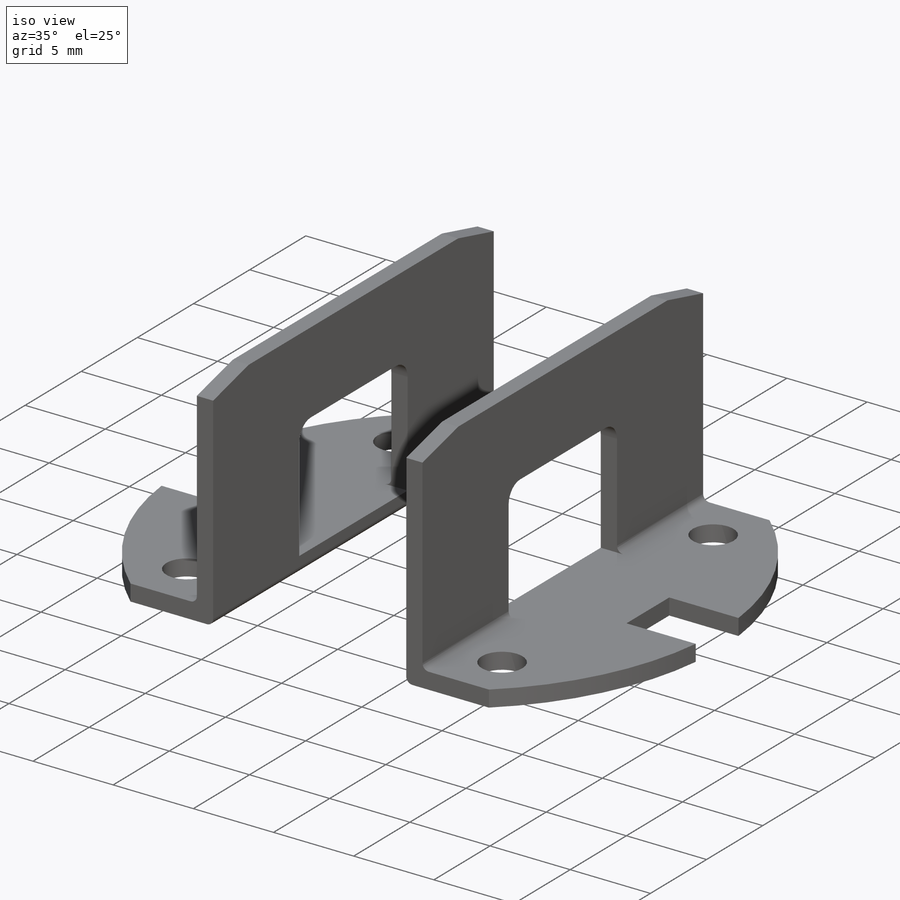
[diagram: iso view]
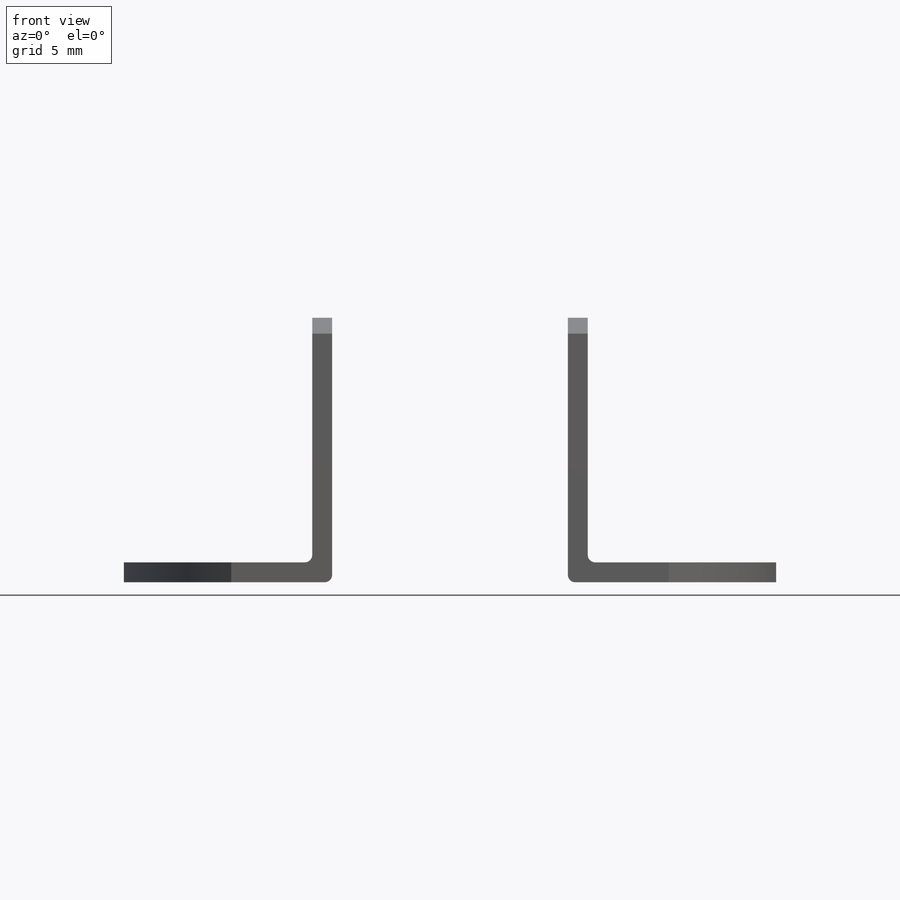
[diagram: front view]
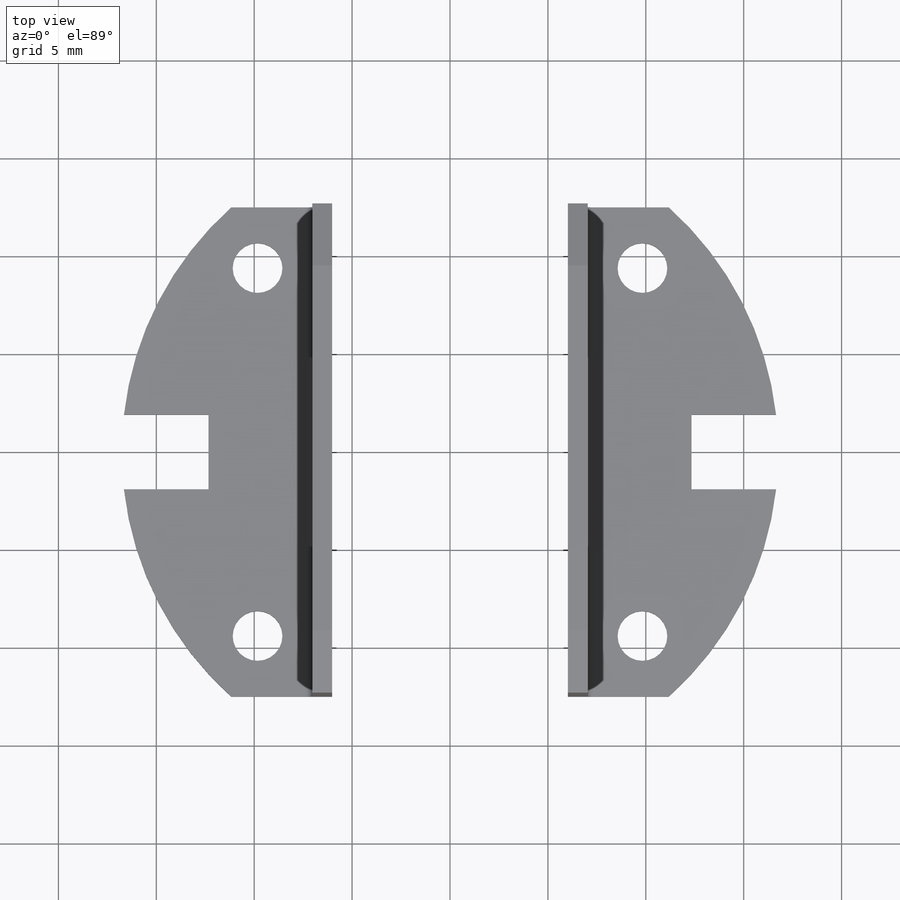
[diagram: top view]
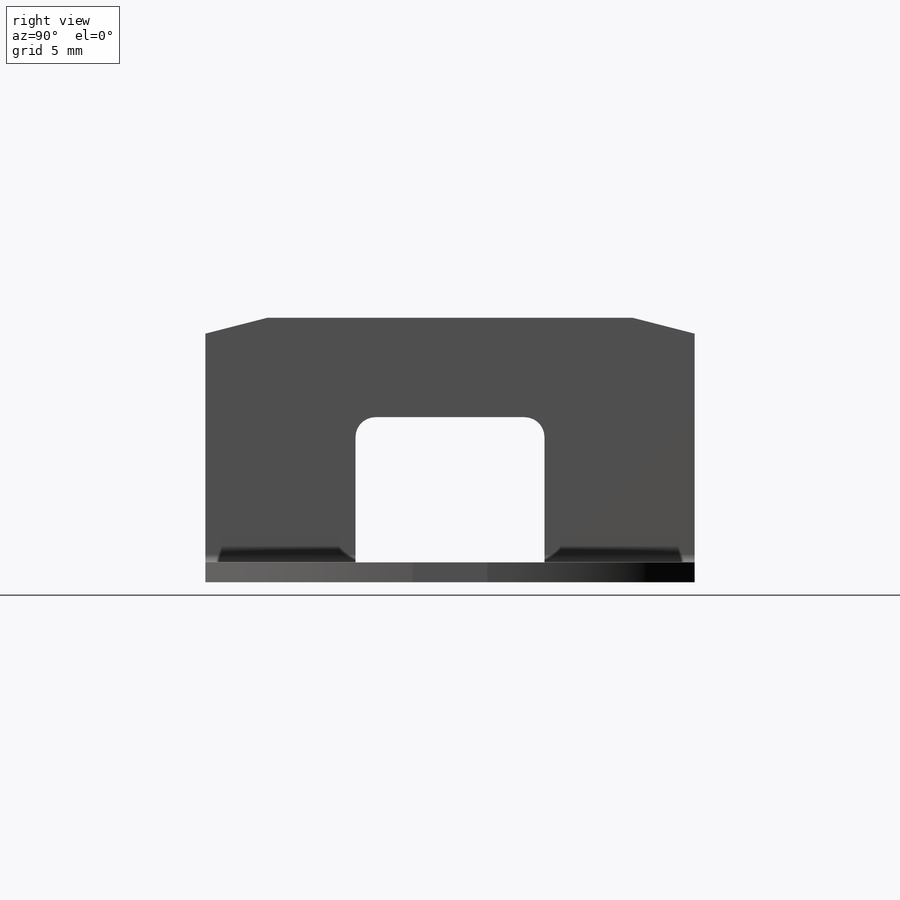
[diagram: right view]
SOLIDWORKS PART (.sldprt)
format: sldprt  version: not decoded by parser v0  size: 464,896 bytes
history: native  units: mm
features: sketch x3, extrude x2, fillet x2, material x1, cut_extrude x1 (+11 scaffold rows collapsed)
feature tree (20):
  scaffold x11  (default folders/planes/origin — collapsed)
  material  "Material <not specified>"
  sketch  "Sketch1"  dims[c1.D1=33.528mm c1.D8=2.54mm c1.D4=1.905mm c1.D7=4.318mm c1.D9=9.398mm c1.D10=3.81mm c1.D11=24.9936mm c1.D6=6.0198mm c1.D2=12.4968mm c1.D3=12.4968mm c2.D4=6.0198mm c2.D5=6.0198mm c3.D4=1.016mm c3.D6=1.016mm]
  extrude  "Boss-Extrude1"  Depth=1.016mm
  sketch  "Sketch2"  dims[D1=1.016mm D2=1.016mm]
  extrude  "Boss-Extrude2"  Depth=13.5128mm
  sketch  "Sketch3"  dims[c1.D4=1.016mm c1.D1=3.175mm c1.D2=0.8128mm c2.D1=4.826mm c2.D3=5.08mm]
  cut_extrude  "Cut-Extrude1"  Depth=13.5128mm
  fillet  "Fillet1"  Radius=0.381mm
  fillet  "Fillet2"  Radius=0.381mm
decode coverage: 8 of 8 modeling features carry decoded parameters
note: suppression state not decoded; provenance and decode notes live in map.json
